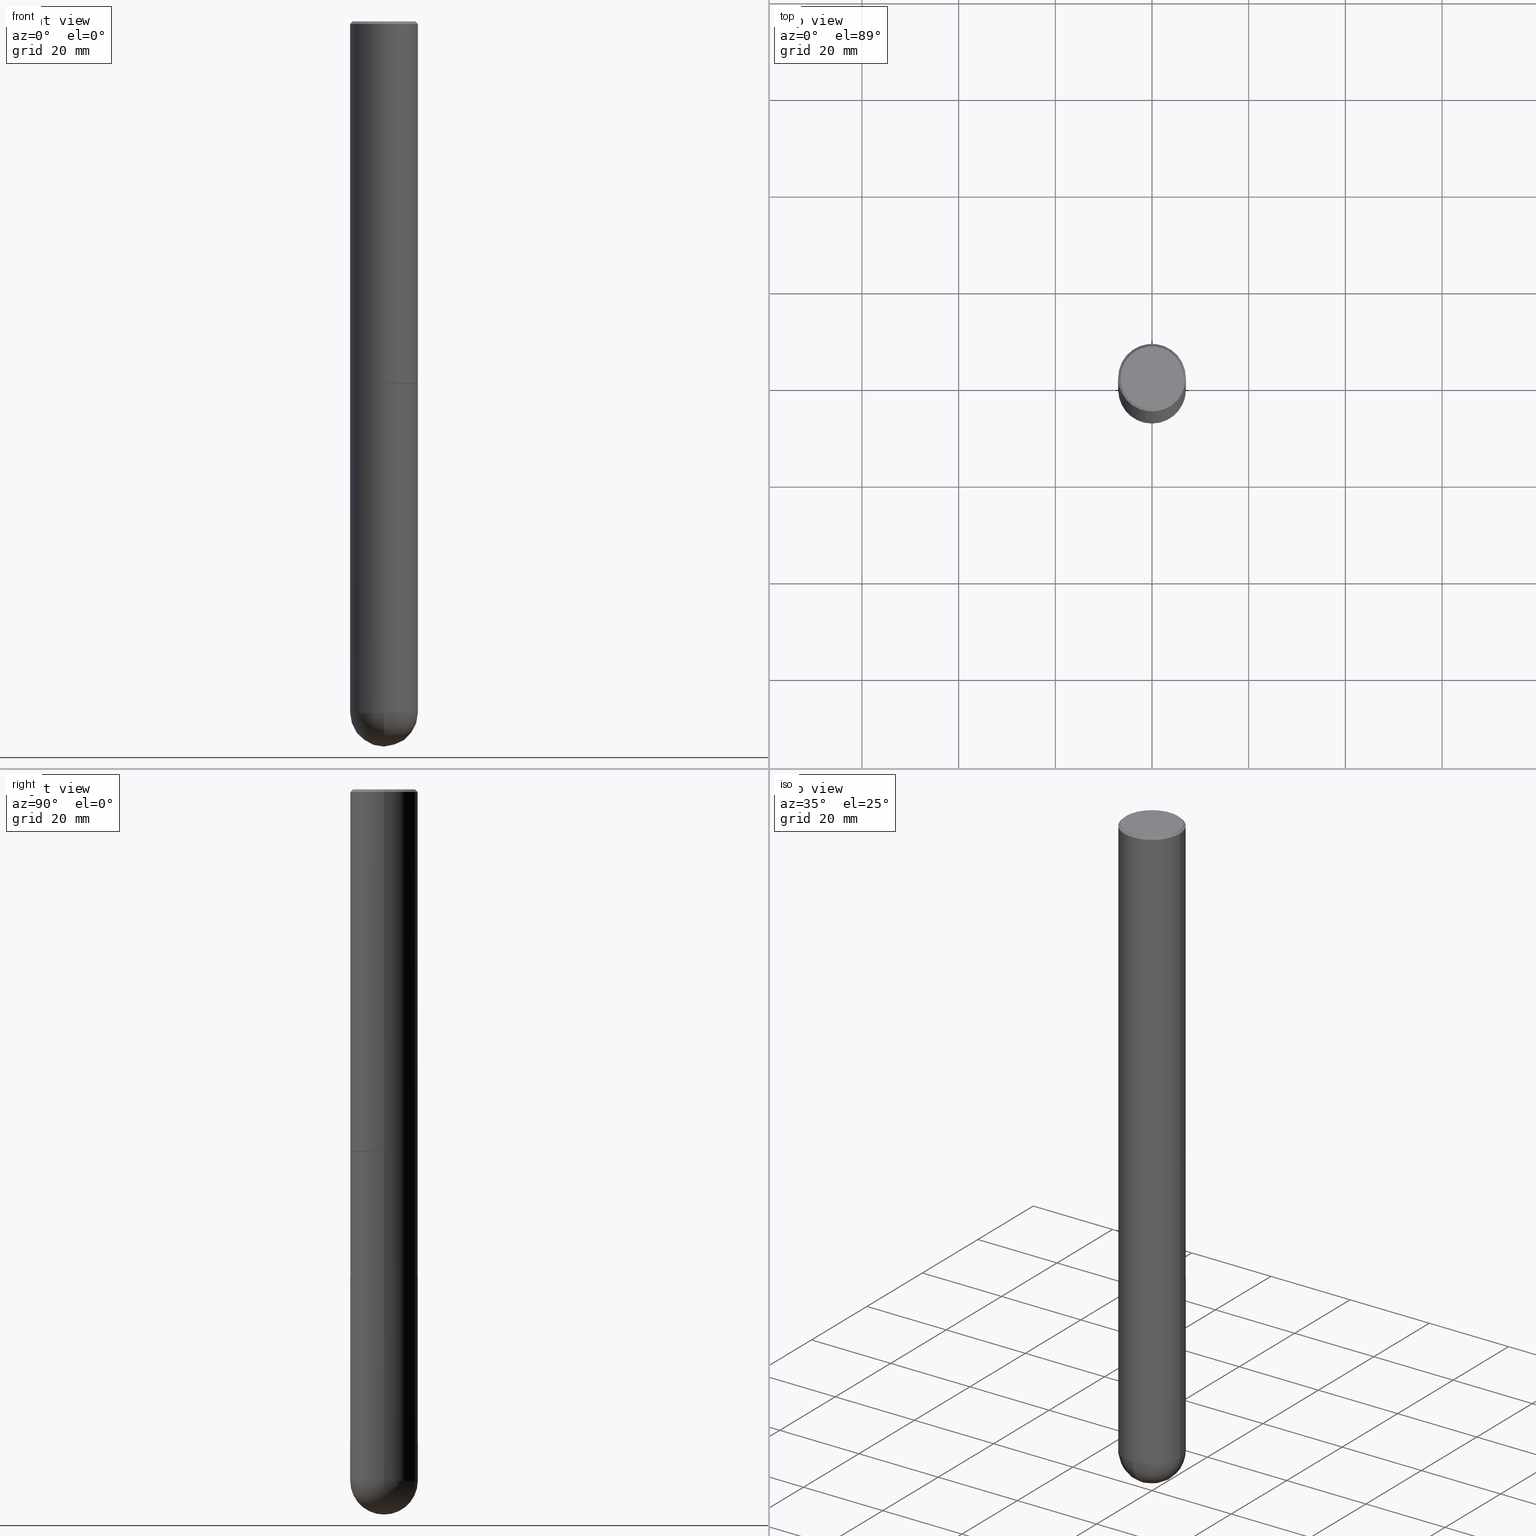
[diagram: canonical four-view strip — front | top / right | iso, engineering-drawing reading convention]
A machine part, canonical four-view strip (front | top / right | iso — engineering-drawing reading convention). The complete STEP part file that produces these views, byte-faithful:
ISO-10303-21;
HEADER;
FILE_DESCRIPTION (( 'STEP AP203' ),
    '1' );
FILE_NAME ('49578.STEP',
    '2024-04-10T12:28:53',
    ( '' ),
    ( '' ),
    'SwSTEP 2.0',
    'SolidWorks 2023',
    '' );
FILE_SCHEMA (( 'CONFIG_CONTROL_DESIGN' ));
ENDSEC;

DATA;
#1 = EDGE_LOOP ( 'NONE', ( #271, #82, #54, #388 ) ) ;
#2 = APPROVAL_STATUS ( 'not_yet_approved' ) ;
#3 = AXIS2_PLACEMENT_3D ( 'NONE', #16, #52, #360 ) ;
#4 = ORIENTED_EDGE ( 'NONE', *, *, #387, .F. ) ;
#5 = ADVANCED_FACE ( 'NONE', ( #240 ), #207, .F. ) ;
#6 = VERTEX_POINT ( 'NONE', #85 ) ;
#7 = DIRECTION ( 'NONE',  ( 0.7071067811865469066, -7.319954787623254468E-15, -0.7071067811865482389 ) ) ;
#8 = FACE_OUTER_BOUND ( 'NONE', #1, .T. ) ;
#9 = AXIS2_PLACEMENT_3D ( 'NONE', #410, #282, #41 ) ;
#10 = EDGE_CURVE ( 'NONE', #42, #20, #212, .T. ) ;
#11 = DIRECTION ( 'NONE',  ( 1.000000000000000000, -6.982962677686267499E-15, 4.876176775795935793E-29 ) ) ;
#12 = CARTESIAN_POINT ( 'NONE',  ( 7.220735744022853640E-29, -1.030929694920215659E-14, -2.952700000000000546 ) ) ;
#13 = ORIENTED_EDGE ( 'NONE', *, *, #201, .T. ) ;
#14 = PRODUCT ( '49578', '49578', '', ( #303 ) ) ;
#15 = CARTESIAN_POINT ( 'NONE',  ( 0.000000000000000000, 0.000000000000000000, 0.000000000000000000 ) ) ;
#16 = CARTESIAN_POINT ( 'NONE',  ( 1.784845260416611119E-15, 0.2556000000000002159, -9.948669299707185608E-16 ) ) ;
#17 = AXIS2_PLACEMENT_3D ( 'NONE', #367, #93, #218 ) ;
#18 = PRODUCT_DEFINITION_FORMATION_WITH_SPECIFIED_SOURCE ( 'ANY', '', #14, .NOT_KNOWN. ) ;
#19 = PERSON_AND_ORGANIZATION_ROLE ( 'creator' ) ;
#20 = VERTEX_POINT ( 'NONE', #269 ) ;
#21 = EDGE_CURVE ( 'NONE', #317, #375, #397, .T. ) ;
#22 = APPROVAL_STATUS ( 'not_yet_approved' ) ;
#23 = ORIENTED_EDGE ( 'NONE', *, *, #196, .F. ) ;
#24 = CC_DESIGN_PERSON_AND_ORGANIZATION_ASSIGNMENT ( #148, #151, ( #18 ) ) ;
#25 = PERSON_AND_ORGANIZATION ( #83, #115 ) ;
#26 = DIRECTION ( 'NONE',  ( 1.000000000000000000, -6.982962677686264344E-15, 0.000000000000000000 ) ) ;
#27 = AXIS2_PLACEMENT_3D ( 'NONE', #132, #252, #160 ) ;
#28 = ADVANCED_FACE ( 'NONE', ( #211 ), #199, .T. ) ;
#29 = CC_DESIGN_SECURITY_CLASSIFICATION ( #179, ( #18 ) ) ;
#30 = APPLICATION_PROTOCOL_DEFINITION ( 'international standard', 'config_control_design', 1994, #292 ) ;
#31 = DIRECTION ( 'NONE',  ( 1.000000000000000000, -6.982962677686267499E-15, 0.000000000000000000 ) ) ;
#32 = CARTESIAN_POINT ( 'NONE',  ( -0.2756000000000000116, -1.302473808962275237E-14, -2.952700000000000102 ) ) ;
#33 = APPROVAL_DATE_TIME ( #371, #186 ) ;
#34 = DIRECTION ( 'NONE',  ( 1.000000000000000000, -6.982962677686262766E-15, 0.000000000000000000 ) ) ;
#35 = AXIS2_PLACEMENT_3D ( 'NONE', #389, #51, #109 ) ;
#36 = CARTESIAN_POINT ( 'NONE',  ( 7.220735744022853640E-29, -1.030929694920215659E-14, -2.952700000000000546 ) ) ;
#37 = EDGE_CURVE ( 'NONE', #349, #257, #380, .T. ) ;
#38 = EDGE_LOOP ( 'NONE', ( #102, #116, #378, #296 ) ) ;
#39 = DIRECTION ( 'NONE',  ( 1.000000000000000000, -6.982962677686264344E-15, 0.000000000000000000 ) ) ;
#40 = ORIENTED_EDGE ( 'NONE', *, *, #166, .T. ) ;
#41 = DIRECTION ( 'NONE',  ( 1.000000000000000000, -6.982962677686265922E-15, 4.876943595080608811E-29 ) ) ;
#42 = VERTEX_POINT ( 'NONE', #60 ) ;
#43 = AXIS2_PLACEMENT_3D ( 'NONE', #152, #405, #156 ) ;
#44 = AXIS2_PLACEMENT_3D ( 'NONE', #79, #138, #112 ) ;
#45 = ORIENTED_EDGE ( 'NONE', *, *, #318, .T. ) ;
#46 = CYLINDRICAL_SURFACE ( 'NONE', #104, 0.2756000000000000671 ) ;
#47 = LINE ( 'NONE', #209, #327 ) ;
#48 = ADVANCED_BREP_SHAPE_REPRESENTATION ( '49578', ( #345, #215, #123 ), #200 ) ;
#49 = FACE_OUTER_BOUND ( 'NONE', #72, .T. ) ;
#50 = CONICAL_SURFACE ( 'NONE', #153, 0.2756000000000000116, 0.7853981633974473908 ) ;
#51 = DIRECTION ( 'NONE',  ( -2.445468806185136597E-29, 3.491481338843145583E-15, 1.000000000000000000 ) ) ;
#52 = DIRECTION ( 'NONE',  ( 2.438088387897960049E-29, -3.491481338843145188E-15, -1.000000000000000000 ) ) ;
#53 = DIRECTION ( 'NONE',  ( 1.000000000000000000, -6.982962677686265922E-15, 4.876176775795935793E-29 ) ) ;
#54 = ORIENTED_EDGE ( 'NONE', *, *, #37, .F. ) ;
#55 = DATE_AND_TIME ( #184, #131 ) ;
#56 = EDGE_LOOP ( 'NONE', ( #319, #376, #239, #348 ) ) ;
#57 = AXIS2_PLACEMENT_3D ( 'NONE', #263, #293, #11 ) ;
#58 = ORIENTED_EDGE ( 'NONE', *, *, #21, .F. ) ;
#59 = PERSON_AND_ORGANIZATION ( #83, #115 ) ;
#60 = CARTESIAN_POINT ( 'NONE',  ( 0.2556000000000002159, -1.857063081596551608E-15, -2.048885995248069963E-16 ) ) ;
#61 = EDGE_CURVE ( 'NONE', #329, #137, #275, .T. ) ;
#62 = DIRECTION ( 'NONE',  ( -2.445468806185136597E-29, 3.491481338843145583E-15, 1.000000000000000000 ) ) ;
#63 = DIRECTION ( 'NONE',  ( 0.7071067811865837660, -2.468850131082636503E-15, 0.7071067811865112684 ) ) ;
#64 = CC_DESIGN_DATE_AND_TIME_ASSIGNMENT ( #320, #377, ( #179 ) ) ;
#65 = CIRCLE ( 'NONE', #195, 0.2756000000000000116 ) ;
#66 = CARTESIAN_POINT ( 'NONE',  ( 7.220735744022852519E-29, -1.030929694920215502E-14, -2.952700000000000102 ) ) ;
#67 = LINE ( 'NONE', #337, #71 ) ;
#68 = CARTESIAN_POINT ( 'NONE',  ( -0.2746000000000000107, -8.352848142456696244E-15, -2.952700000000000546 ) ) ;
#69 = ADVANCED_FACE ( 'NONE', ( #222 ), #193, .T. ) ;
#70 = ORIENTED_EDGE ( 'NONE', *, *, #224, .T. ) ;
#71 = VECTOR ( 'NONE', #63, 39.37007874015748143 ) ;
#72 = EDGE_LOOP ( 'NONE', ( #182, #299, #266, #58, #45 ) ) ;
#73 = ORIENTED_EDGE ( 'NONE', *, *, #141, .F. ) ;
#74 = ORIENTED_EDGE ( 'NONE', *, *, #407, .F. ) ;
#75 = PRODUCT_RELATED_PRODUCT_CATEGORY ( 'detail', '', ( #14 ) ) ;
#76 = VECTOR ( 'NONE', #162, 39.37007874015748143 ) ;
#77 = DIRECTION ( 'NONE',  ( 1.000000000000000000, -6.982962677686267499E-15, 4.876176775795935793E-29 ) ) ;
#78 = CARTESIAN_POINT ( 'NONE',  ( 4.890937612370288923E-31, -6.982962677686312563E-17, -0.02000000000000006287 ) ) ;
#79 = CARTESIAN_POINT ( 'NONE',  ( 7.218290275216666916E-29, -1.030580546786331359E-14, -2.951700000000000212 ) ) ;
#80 = DIRECTION ( 'NONE',  ( 2.445468806185136597E-29, -3.491481338843145583E-15, -1.000000000000000000 ) ) ;
#81 = CIRCLE ( 'NONE', #44, 0.2756000000000004557 ) ;
#82 = ORIENTED_EDGE ( 'NONE', *, *, #387, .T. ) ;
#83 = PERSON ( 'UNSPECIFIED', 'UNSPECIFIED', 'UNSPECIFIED', ('UNSPECIFIED'), ('UNSPECIFIED'), ('UNSPECIFIED') ) ;
#84 = DIRECTION ( 'NONE',  ( -2.438088387897960049E-29, 3.491481338843145188E-15, 1.000000000000000000 ) ) ;
#85 = CARTESIAN_POINT ( 'NONE',  ( 0.2756000000000004557, -1.223030998183365327E-14, -2.951700000000000212 ) ) ;
#86 = DIRECTION ( 'NONE',  ( -2.445468806185136877E-29, 3.491481338843145188E-15, 1.000000000000000000 ) ) ;
#87 = LINE ( 'NONE', #243, #188 ) ;
#88 = ORIENTED_EDGE ( 'NONE', *, *, #264, .T. ) ;
#89 = AXIS2_PLACEMENT_3D ( 'NONE', #192, #312, #34 ) ;
#90 = APPROVAL_PERSON_ORGANIZATION ( #368, #402, #272 ) ;
#91 = ADVANCED_FACE ( 'NONE', ( #285 ), #97, .F. ) ;
#92 = CARTESIAN_POINT ( 'NONE',  ( 7.218290275216666916E-29, -1.030580546786331359E-14, -2.951700000000000212 ) ) ;
#93 = DIRECTION ( 'NONE',  ( 2.445468806185136597E-29, -3.491481338843145583E-15, -1.000000000000000000 ) ) ;
#94 = COORDINATED_UNIVERSAL_TIME_OFFSET ( 5, 0, .BEHIND. ) ;
#95 = CYLINDRICAL_SURFACE ( 'NONE', #308, 0.2756000000000002337 ) ;
#96 = APPROVAL_ROLE ( '' ) ;
#97 = PLANE ( 'NONE',  #27 ) ;
#98 = VERTEX_POINT ( 'NONE', #68 ) ;
#99 = ADVANCED_FACE ( 'NONE', ( #127 ), #260, .T. ) ;
#100 = COORDINATED_UNIVERSAL_TIME_OFFSET ( 5, 0, .BEHIND. ) ;
#101 = SHAPE_DEFINITION_REPRESENTATION ( #343, #48 ) ;
#102 = ORIENTED_EDGE ( 'NONE', *, *, #264, .F. ) ;
#103 = AXIS2_PLACEMENT_3D ( 'NONE', #245, #159, #366 ) ;
#104 = AXIS2_PLACEMENT_3D ( 'NONE', #15, #236, #77 ) ;
#105 = CARTESIAN_POINT ( 'NONE',  ( 1.376774483194169922E-28, -1.965669078955302449E-14, -5.629900000000000126 ) ) ;
#106 = CC_DESIGN_PERSON_AND_ORGANIZATION_ASSIGNMENT ( #25, #19, ( #18 ) ) ;
#107 = VERTEX_POINT ( 'NONE', #187 ) ;
#108 = AXIS2_PLACEMENT_3D ( 'NONE', #36, #344, #369 ) ;
#109 = DIRECTION ( 'NONE',  ( 1.000000000000000000, -6.982962677686267499E-15, 4.876176775795935793E-29 ) ) ;
#110 = EDGE_CURVE ( 'NONE', #313, #137, #339, .T. ) ;
#111 = FACE_OUTER_BOUND ( 'NONE', #158, .T. ) ;
#112 = DIRECTION ( 'NONE',  ( 1.000000000000000000, -6.982962677686269077E-15, 0.000000000000000000 ) ) ;
#113 = CYLINDRICAL_SURFACE ( 'NONE', #57, 0.2756000000000000671 ) ;
#114 = AXIS2_PLACEMENT_3D ( 'NONE', #331, #176, #147 ) ;
#115 = ORGANIZATION ( 'UNSPECIFIED', 'UNSPECIFIED', '' ) ;
#116 = ORIENTED_EDGE ( 'NONE', *, *, #224, .F. ) ;
#117 = EDGE_CURVE ( 'NONE', #6, #362, #169, .T. ) ;
#118 = LINE ( 'NONE', #330, #154 ) ;
#119 = CARTESIAN_POINT ( 'NONE',  ( 0.2756000000000000671, -1.924504513970335743E-15, 1.343874319409360268E-29 ) ) ;
#120 = ORIENTED_EDGE ( 'NONE', *, *, #10, .T. ) ;
#121 =( CONVERSION_BASED_UNIT ( 'INCH', #398 ) LENGTH_UNIT ( ) NAMED_UNIT ( #235 ) );
#122 = CIRCLE ( 'NONE', #43, 0.2756000000000000116 ) ;
#123 = AXIS2_PLACEMENT_3D ( 'NONE', #181, #246, #311 ) ;
#124 = PERSON_AND_ORGANIZATION ( #83, #115 ) ;
#125 = LINE ( 'NONE', #248, #363 ) ;
#126 = PERSON_AND_ORGANIZATION_ROLE ( 'design_owner' ) ;
#127 = FACE_OUTER_BOUND ( 'NONE', #56, .T. ) ;
#128 = UNCERTAINTY_MEASURE_WITH_UNIT (LENGTH_MEASURE( 1.000000000000000082E-05 ), #121, 'distance_accuracy_value', 'NONE');
#129 = DIRECTION ( 'NONE',  ( -1.000000000000000000, 7.105427357601001070E-15, -4.926315508542082329E-29 ) ) ;
#130 = CIRCLE ( 'NONE', #351, 0.2756000000000000671 ) ;
#131 = LOCAL_TIME ( 8, 28, 53.00000000000000000, #365 ) ;
#132 = CARTESIAN_POINT ( 'NONE',  ( 1.924504513970407529E-15, 0.2755999999999896866, -2.952700000000000990 ) ) ;
#133 = ORIENTED_EDGE ( 'NONE', *, *, #61, .T. ) ;
#134 = AXIS2_PLACEMENT_3D ( 'NONE', #223, #411, #31 ) ;
#135 = APPROVAL ( #157, 'UNSPECIFIED' ) ;
#136 = ORIENTED_EDGE ( 'NONE', *, *, #201, .F. ) ;
#137 = VERTEX_POINT ( 'NONE', #310 ) ;
#138 = DIRECTION ( 'NONE',  ( -2.445468806185136597E-29, 3.491481338843145583E-15, 1.000000000000000000 ) ) ;
#139 = LINE ( 'NONE', #202, #309 ) ;
#140 = DIRECTION ( 'NONE',  ( 6.982962677686267499E-15, 1.000000000000000000, 0.000000000000000000 ) ) ;
#141 = EDGE_CURVE ( 'NONE', #107, #6, #67, .T. ) ;
#142 = CARTESIAN_POINT ( 'NONE',  ( 1.412238044847732931E-28, -2.107624978178599697E-14, -5.905499999999999972 ) ) ;
#143 = EDGE_LOOP ( 'NONE', ( #214, #304, #13, #174, #74 ) ) ;
#144 = CARTESIAN_POINT ( 'NONE',  ( 0.2756000000000000116, -1.223380146317248997E-14, -2.952700000000000102 ) ) ;
#145 = PRODUCT_DEFINITION ( 'UNKNOWN', '', #18, #167 ) ;
#146 = LOCAL_TIME ( 8, 28, 53.00000000000000000, #94 ) ;
#147 = DIRECTION ( 'NONE',  ( 1.000000000000000000, -6.982962677686265922E-15, 4.876943595080608811E-29 ) ) ;
#148 = PERSON_AND_ORGANIZATION ( #83, #115 ) ;
#149 = ORIENTED_EDGE ( 'NONE', *, *, #407, .T. ) ;
#150 = ORIENTED_EDGE ( 'NONE', *, *, #241, .F. ) ;
#151 = PERSON_AND_ORGANIZATION_ROLE ( 'design_supplier' ) ;
#152 = CARTESIAN_POINT ( 'NONE',  ( 7.220735744022852519E-29, -1.030929694920215502E-14, -2.952700000000000102 ) ) ;
#153 = AXIS2_PLACEMENT_3D ( 'NONE', #324, #80, #203 ) ;
#154 = VECTOR ( 'NONE', #173, 39.37007874015748143 ) ;
#155 = APPLICATION_PROTOCOL_DEFINITION ( 'international standard', 'config_control_design', 1994, #379 ) ;
#156 = DIRECTION ( 'NONE',  ( 1.000000000000000000, -6.982962677686265922E-15, 0.000000000000000000 ) ) ;
#157 = APPROVAL_STATUS ( 'not_yet_approved' ) ;
#158 = EDGE_LOOP ( 'NONE', ( #323, #401, #210, #136 ) ) ;
#159 = DIRECTION ( 'NONE',  ( -2.445468806185136597E-29, 3.491481338843145583E-15, 1.000000000000000000 ) ) ;
#160 = DIRECTION ( 'NONE',  ( -1.000000000000000000, 6.982962677686265922E-15, -4.876176775795935793E-29 ) ) ;
#161 = EDGE_CURVE ( 'NONE', #333, #313, #220, .T. ) ;
#162 = DIRECTION ( 'NONE',  ( -0.7071067811865469066, 2.468850131082249961E-15, -0.7071067811865482389 ) ) ;
#163 = ORIENTED_EDGE ( 'NONE', *, *, #172, .T. ) ;
#164 = DIRECTION ( 'NONE',  ( -2.445468806185136597E-29, 3.491481338843145583E-15, 1.000000000000000000 ) ) ;
#165 = SPHERICAL_SURFACE ( 'NONE', #221, 0.2756000000000000671 ) ;
#166 = EDGE_CURVE ( 'NONE', #375, #385, #122, .T. ) ;
#167 = DESIGN_CONTEXT ( 'detailed design', #379, 'design' ) ;
#168 = DIRECTION ( 'NONE',  ( -2.445468806185136597E-29, 3.491481338843145583E-15, 1.000000000000000000 ) ) ;
#169 = CIRCLE ( 'NONE', #395, 0.2756000000000004557 ) ;
#170 = LOCAL_TIME ( 8, 28, 53.00000000000000000, #412 ) ;
#171 = CYLINDRICAL_SURFACE ( 'NONE', #35, 0.2756000000000002337 ) ;
#172 = EDGE_CURVE ( 'NONE', #6, #349, #125, .T. ) ;
#173 = DIRECTION ( 'NONE',  ( -0.7071067811865837660, 7.493145998870485111E-15, 0.7071067811865112684 ) ) ;
#174 = ORIENTED_EDGE ( 'NONE', *, *, #21, .T. ) ;
#175 = FACE_OUTER_BOUND ( 'NONE', #273, .T. ) ;
#176 = DIRECTION ( 'NONE',  ( -2.445468806185136597E-29, 3.491481338843145583E-15, 1.000000000000000000 ) ) ;
#177 = PERSON_AND_ORGANIZATION ( #83, #115 ) ;
#178 = AXIS2_PLACEMENT_3D ( 'NONE', #373, #129, #346 ) ;
#179 = SECURITY_CLASSIFICATION ( '', '', #270 ) ;
#180 = ORIENTED_EDGE ( 'NONE', *, *, #291, .F. ) ;
#181 = CARTESIAN_POINT ( 'NONE',  ( 0.000000000000000000, 0.000000000000000000, 0.000000000000000000 ) ) ;
#182 = ORIENTED_EDGE ( 'NONE', *, *, #161, .T. ) ;
#183 = ADVANCED_FACE ( 'NONE', ( #250 ), #321, .T. ) ;
#184 = CALENDAR_DATE ( 2024, 10, 4 ) ;
#185 = DIRECTION ( 'NONE',  ( -1.000000000000000000, 6.982962677686265922E-15, -4.883557194083112901E-29 ) ) ;
#186 = APPROVAL ( #2, 'UNSPECIFIED' ) ;
#187 = CARTESIAN_POINT ( 'NONE',  ( 0.2746000000000000107, -1.222681850049480396E-14, -2.952700000000000546 ) ) ;
#188 = VECTOR ( 'NONE', #219, 39.37007874015748143 ) ;
#189 = ADVANCED_FACE ( 'NONE', ( #338 ), #95, .T. ) ;
#190 = DIRECTION ( 'NONE',  ( 1.000000000000000000, -6.982962677686265922E-15, 0.000000000000000000 ) ) ;
#191 = CARTESIAN_POINT ( 'NONE',  ( 0.000000000000000000, 0.000000000000000000, 0.000000000000000000 ) ) ;
#192 = CARTESIAN_POINT ( 'NONE',  ( 7.220735744022853640E-29, -1.030929694920215659E-14, -2.952700000000000546 ) ) ;
#193 = SPHERICAL_SURFACE ( 'NONE', #267, 0.2756000000000000671 ) ;
#194 = CIRCLE ( 'NONE', #9, 0.2556000000000002159 ) ;
#195 = AXIS2_PLACEMENT_3D ( 'NONE', #78, #268, #290 ) ;
#196 = EDGE_CURVE ( 'NONE', #20, #257, #384, .T. ) ;
#197 = ORIENTED_EDGE ( 'NONE', *, *, #241, .T. ) ;
#198 = EDGE_LOOP ( 'NONE', ( #197, #228, #335, #73 ) ) ;
#199 = CONICAL_SURFACE ( 'NONE', #108, 0.2746000000000000107, 0.7853981633974995713 ) ;
#200 =( GEOMETRIC_REPRESENTATION_CONTEXT ( 3 ) GLOBAL_UNCERTAINTY_ASSIGNED_CONTEXT ( ( #128 ) ) GLOBAL_UNIT_ASSIGNED_CONTEXT ( ( #121, #334, #406 ) ) REPRESENTATION_CONTEXT ( 'NONE', 'WORKASPACE' ) );
#201 = EDGE_CURVE ( 'NONE', #137, #317, #130, .T. ) ;
#202 = CARTESIAN_POINT ( 'NONE',  ( -0.2756000000000000671, 1.958255779754836589E-15, -1.355658510874252287E-29 ) ) ;
#203 = DIRECTION ( 'NONE',  ( -1.000000000000000000, 6.982962677686267499E-15, 0.000000000000000000 ) ) ;
#204 = DIRECTION ( 'NONE',  ( 1.000000000000000000, -6.982962677686262766E-15, 0.000000000000000000 ) ) ;
#205 = AXIS2_PLACEMENT_3D ( 'NONE', #356, #354, #140 ) ;
#206 = CARTESIAN_POINT ( 'NONE',  ( 7.220735744022853640E-29, -1.030929694920215659E-14, -2.952700000000000546 ) ) ;
#207 = PLANE ( 'NONE',  #3 ) ;
#208 = CC_DESIGN_DATE_AND_TIME_ASSIGNMENT ( #55, #340, ( #145 ) ) ;
#209 = CARTESIAN_POINT ( 'NONE',  ( 0.2756000000000000116, -1.960582874962697406E-15, -0.02000000000000006287 ) ) ;
#210 = ORIENTED_EDGE ( 'NONE', *, *, #318, .F. ) ;
#211 = FACE_OUTER_BOUND ( 'NONE', #198, .T. ) ;
#212 = CIRCLE ( 'NONE', #114, 0.2556000000000002159 ) ;
#213 = AXIS2_PLACEMENT_3D ( 'NONE', #12, #325, #233 ) ;
#214 = ORIENTED_EDGE ( 'NONE', *, *, #247, .F. ) ;
#215 = MANIFOLD_SOLID_BREP ( 'Body-Move/Copy2[2]', #244 ) ;
#216 = DIRECTION ( 'NONE',  ( -2.445468806185136597E-29, 3.491481338843145583E-15, 1.000000000000000000 ) ) ;
#217 =( LENGTH_UNIT ( ) NAMED_UNIT ( * ) SI_UNIT ( $, .METRE. ) );
#218 = DIRECTION ( 'NONE',  ( -1.000000000000000000, 6.982962677686267499E-15, 0.000000000000000000 ) ) ;
#219 = DIRECTION ( 'NONE',  ( -2.445468806185136877E-29, 3.491481338843145188E-15, 1.000000000000000000 ) ) ;
#220 = CIRCLE ( 'NONE', #314, 0.2756000000000000671 ) ;
#221 = AXIS2_PLACEMENT_3D ( 'NONE', #355, #289, #391 ) ;
#222 = FACE_OUTER_BOUND ( 'NONE', #288, .T. ) ;
#223 = CARTESIAN_POINT ( 'NONE',  ( 4.890937612370288923E-31, -6.982962677686312563E-17, -0.02000000000000006287 ) ) ;
#224 = EDGE_CURVE ( 'NONE', #20, #42, #194, .T. ) ;
#225 = AXIS2_PLACEMENT_3D ( 'NONE', #66, #62, #190 ) ;
#226 = ADVANCED_FACE ( 'NONE', ( #237 ), #50, .T. ) ;
#227 = DIRECTION ( 'NONE',  ( -2.445468806185136597E-29, 3.491481338843145583E-15, 1.000000000000000000 ) ) ;
#228 = ORIENTED_EDGE ( 'NONE', *, *, #294, .T. ) ;
#229 = ADVANCED_FACE ( 'NONE', ( #295 ), #46, .T. ) ;
#230 = ORIENTED_EDGE ( 'NONE', *, *, #161, .F. ) ;
#231 = ORIENTED_EDGE ( 'NONE', *, *, #37, .T. ) ;
#232 = AXIS2_PLACEMENT_3D ( 'NONE', #206, #168, #204 ) ;
#233 = DIRECTION ( 'NONE',  ( 1.000000000000000000, -6.982962677686262766E-15, 0.000000000000000000 ) ) ;
#234 = CARTESIAN_POINT ( 'NONE',  ( 1.376774483194169922E-28, -1.965669078955302449E-14, -5.629900000000000126 ) ) ;
#235 = DIMENSIONAL_EXPONENTS ( 1.000000000000000000, 0.000000000000000000, 0.000000000000000000, 0.000000000000000000, 0.000000000000000000, 0.000000000000000000, 0.000000000000000000 ) ;
#236 = DIRECTION ( 'NONE',  ( -2.445468806185136597E-29, 3.491481338843145583E-15, 1.000000000000000000 ) ) ;
#237 = FACE_OUTER_BOUND ( 'NONE', #38, .T. ) ;
#238 = PLANE ( 'NONE',  #364 ) ;
#239 = ORIENTED_EDGE ( 'NONE', *, *, #141, .T. ) ;
#240 = FACE_OUTER_BOUND ( 'NONE', #357, .T. ) ;
#241 = EDGE_CURVE ( 'NONE', #107, #98, #382, .T. ) ;
#242 = ORIENTED_EDGE ( 'NONE', *, *, #110, .F. ) ;
#243 = CARTESIAN_POINT ( 'NONE',  ( -0.2756000000000002337, 1.958255779754837773E-15, -1.355658510874253128E-29 ) ) ;
#244 = CLOSED_SHELL ( 'NONE', ( #28, #342, #183, #226, #189, #99, #358, #5 ) ) ;
#245 = CARTESIAN_POINT ( 'NONE',  ( 1.376774483194169922E-28, -1.965669078955302449E-14, -5.629900000000000126 ) ) ;
#246 = DIRECTION ( 'NONE',  ( 0.000000000000000000, 0.000000000000000000, 1.000000000000000000 ) ) ;
#247 = EDGE_CURVE ( 'NONE', #313, #385, #139, .T. ) ;
#248 = CARTESIAN_POINT ( 'NONE',  ( 0.2756000000000002337, -1.924504513970336926E-15, 1.343874319409361109E-29 ) ) ;
#249 = CALENDAR_DATE ( 2024, 10, 4 ) ;
#250 = FACE_OUTER_BOUND ( 'NONE', #302, .T. ) ;
#251 = DIRECTION ( 'NONE',  ( 1.000000000000000000, -6.982962677686267499E-15, 4.876176775795935793E-29 ) ) ;
#252 = DIRECTION ( 'NONE',  ( 2.438088387897960049E-29, -3.491481338843145188E-15, -1.000000000000000000 ) ) ;
#253 = ADVANCED_FACE ( 'NONE', ( #111 ), #165, .T. ) ;
#254 = EDGE_LOOP ( 'NONE', ( #40, #149 ) ) ;
#255 = CC_DESIGN_APPROVAL ( #135, ( #18 ) ) ;
#256 = CIRCLE ( 'NONE', #225, 0.2756000000000000116 ) ;
#257 = VERTEX_POINT ( 'NONE', #326 ) ;
#258 = ORIENTED_EDGE ( 'NONE', *, *, #10, .F. ) ;
#259 = CARTESIAN_POINT ( 'NONE',  ( 1.924504513970471427E-15, 0.2755999999999801942, -5.629900000000001015 ) ) ;
#260 = CONICAL_SURFACE ( 'NONE', #89, 0.2746000000000000107, 0.7853981633974995713 ) ;
#261 = CIRCLE ( 'NONE', #205, 0.2756000000000000671 ) ;
#262 = DIRECTION ( 'NONE',  ( -2.445468806185136877E-29, 3.491481338843145188E-15, 1.000000000000000000 ) ) ;
#263 = CARTESIAN_POINT ( 'NONE',  ( 0.000000000000000000, 0.000000000000000000, 0.000000000000000000 ) ) ;
#264 = EDGE_CURVE ( 'NONE', #42, #349, #47, .T. ) ;
#265 = CARTESIAN_POINT ( 'NONE',  ( 0.2756000000000000116, -1.960582874962697406E-15, -0.02000000000000006287 ) ) ;
#266 = ORIENTED_EDGE ( 'NONE', *, *, #166, .F. ) ;
#267 = AXIS2_PLACEMENT_3D ( 'NONE', #408, #185, #315 ) ;
#268 = DIRECTION ( 'NONE',  ( -2.445468806185136597E-29, 3.491481338843145583E-15, 1.000000000000000000 ) ) ;
#269 = CARTESIAN_POINT ( 'NONE',  ( -0.2556000000000002159, 1.819760073805041190E-15, -2.048885995248323632E-16 ) ) ;
#270 = SECURITY_CLASSIFICATION_LEVEL ( 'unclassified' ) ;
#271 = ORIENTED_EDGE ( 'NONE', *, *, #117, .T. ) ;
#272 = APPROVAL_ROLE ( '' ) ;
#273 = EDGE_LOOP ( 'NONE', ( #150, #386 ) ) ;
#274 = PERSON_AND_ORGANIZATION_ROLE ( 'creator' ) ;
#275 = CIRCLE ( 'NONE', #178, 0.2756000000000000671 ) ;
#276 = CARTESIAN_POINT ( 'NONE',  ( 1.376774483194169922E-28, -1.965669078955302449E-14, -5.629900000000000126 ) ) ;
#277 = DATE_AND_TIME ( #279, #146 ) ;
#278 = DIRECTION ( 'NONE',  ( -2.445468806185136877E-29, 3.491481338843145188E-15, 1.000000000000000000 ) ) ;
#279 = CALENDAR_DATE ( 2024, 10, 4 ) ;
#280 = CALENDAR_DATE ( 2024, 10, 4 ) ;
#281 = VECTOR ( 'NONE', #86, 39.37007874015748143 ) ;
#282 = DIRECTION ( 'NONE',  ( -2.445468806185136597E-29, 3.491481338843145583E-15, 1.000000000000000000 ) ) ;
#283 = LOCAL_TIME ( 8, 28, 53.00000000000000000, #100 ) ;
#284 = EDGE_CURVE ( 'NONE', #362, #6, #81, .T. ) ;
#285 = FACE_OUTER_BOUND ( 'NONE', #254, .T. ) ;
#286 = EDGE_CURVE ( 'NONE', #257, #349, #65, .T. ) ;
#287 = PERSON_AND_ORGANIZATION ( #83, #115 ) ;
#288 = EDGE_LOOP ( 'NONE', ( #180, #133, #242, #230 ) ) ;
#289 = DIRECTION ( 'NONE',  ( -1.000000000000000000, 6.982962677686265922E-15, -4.883557194083112901E-29 ) ) ;
#290 = DIRECTION ( 'NONE',  ( 1.000000000000000000, -6.982962677686267499E-15, 0.000000000000000000 ) ) ;
#291 = EDGE_CURVE ( 'NONE', #329, #333, #261, .T. ) ;
#292 = APPLICATION_CONTEXT ( 'configuration controlled 3d designs of mechanical parts and assemblies' ) ;
#293 = DIRECTION ( 'NONE',  ( -2.445468806185136597E-29, 3.491481338843145583E-15, 1.000000000000000000 ) ) ;
#294 = EDGE_CURVE ( 'NONE', #98, #362, #118, .T. ) ;
#295 = FACE_OUTER_BOUND ( 'NONE', #143, .T. ) ;
#296 = ORIENTED_EDGE ( 'NONE', *, *, #286, .T. ) ;
#297 = EDGE_CURVE ( 'NONE', #98, #107, #352, .T. ) ;
#298 = CARTESIAN_POINT ( 'NONE',  ( -0.2756000000000004002, -3.229561767565246331E-15, -2.951700000000000212 ) ) ;
#299 = ORIENTED_EDGE ( 'NONE', *, *, #247, .T. ) ;
#300 = CC_DESIGN_APPROVAL ( #402, ( #145 ) ) ;
#301 = APPROVAL_DATE_TIME ( #336, #402 ) ;
#302 = EDGE_LOOP ( 'NONE', ( #258, #88, #231, #23 ) ) ;
#303 = MECHANICAL_CONTEXT ( 'NONE', #292, 'mechanical' ) ;
#304 = ORIENTED_EDGE ( 'NONE', *, *, #110, .T. ) ;
#305 = APPROVAL_ROLE ( '' ) ;
#306 = DIRECTION ( 'NONE',  ( -2.445468806185136597E-29, 3.491481338843145583E-15, 1.000000000000000000 ) ) ;
#307 = CC_DESIGN_PERSON_AND_ORGANIZATION_ASSIGNMENT ( #124, #404, ( #179 ) ) ;
#308 = AXIS2_PLACEMENT_3D ( 'NONE', #191, #164, #251 ) ;
#309 = VECTOR ( 'NONE', #262, 39.37007874015748143 ) ;
#310 = CARTESIAN_POINT ( 'NONE',  ( -1.958255779754700116E-15, -0.2756000000000199956, -5.629899999999999238 ) ) ;
#311 = DIRECTION ( 'NONE',  ( 1.000000000000000000, 0.000000000000000000, 0.000000000000000000 ) ) ;
#312 = DIRECTION ( 'NONE',  ( -2.445468806185136597E-29, 3.491481338843145583E-15, 1.000000000000000000 ) ) ;
#313 = VERTEX_POINT ( 'NONE', #396 ) ;
#314 = AXIS2_PLACEMENT_3D ( 'NONE', #276, #306, #26 ) ;
#315 = DIRECTION ( 'NONE',  ( 6.982962677686265922E-15, 1.000000000000000000, -3.964946289788479319E-15 ) ) ;
#316 = APPROVAL_PERSON_ORGANIZATION ( #177, #135, #305 ) ;
#317 = VERTEX_POINT ( 'NONE', #328 ) ;
#318 = EDGE_CURVE ( 'NONE', #317, #333, #372, .T. ) ;
#319 = ORIENTED_EDGE ( 'NONE', *, *, #294, .F. ) ;
#320 = DATE_AND_TIME ( #347, #170 ) ;
#321 = CONICAL_SURFACE ( 'NONE', #17, 0.2756000000000000116, 0.7853981633974473908 ) ;
#322 = LOCAL_TIME ( 8, 28, 53.00000000000000000, #400 ) ;
#323 = ORIENTED_EDGE ( 'NONE', *, *, #61, .F. ) ;
#324 = CARTESIAN_POINT ( 'NONE',  ( 4.890937612370288923E-31, -6.982962677686312563E-17, -0.02000000000000006287 ) ) ;
#325 = DIRECTION ( 'NONE',  ( -2.445468806185136597E-29, 3.491481338843145583E-15, 1.000000000000000000 ) ) ;
#326 = CARTESIAN_POINT ( 'NONE',  ( -0.2756000000000000116, 1.854674887193472050E-15, -0.02000000000000006287 ) ) ;
#327 = VECTOR ( 'NONE', #7, 39.37007874015748143 ) ;
#328 = CARTESIAN_POINT ( 'NONE',  ( 0.2756000000000000671, -1.690749838334792865E-14, -5.629900000000000126 ) ) ;
#329 = VERTEX_POINT ( 'NONE', #142 ) ;
#330 = CARTESIAN_POINT ( 'NONE',  ( -0.2746000000000000107, -8.358146596804921801E-15, -2.952700000000000546 ) ) ;
#331 = CARTESIAN_POINT ( 'NONE',  ( 5.010486788809054823E-45, -7.153647217826146999E-31, -2.048885995248197414E-16 ) ) ;
#332 = PERSON_AND_ORGANIZATION ( #83, #115 ) ;
#333 = VERTEX_POINT ( 'NONE', #259 ) ;
#334 =( NAMED_UNIT ( * ) PLANE_ANGLE_UNIT ( ) SI_UNIT ( $, .RADIAN. ) );
#335 = ORIENTED_EDGE ( 'NONE', *, *, #117, .F. ) ;
#336 = DATE_AND_TIME ( #249, #322 ) ;
#337 = CARTESIAN_POINT ( 'NONE',  ( 0.2746000000000000107, -1.222681850049480396E-14, -2.952700000000000546 ) ) ;
#338 = FACE_OUTER_BOUND ( 'NONE', #394, .T. ) ;
#339 = CIRCLE ( 'NONE', #103, 0.2756000000000000671 ) ;
#340 = DATE_TIME_ROLE ( 'creation_date' ) ;
#341 = DIRECTION ( 'NONE',  ( 1.000000000000000000, -6.982962677686269077E-15, 0.000000000000000000 ) ) ;
#342 = ADVANCED_FACE ( 'NONE', ( #8 ), #171, .T. ) ;
#343 = PRODUCT_DEFINITION_SHAPE ( 'NONE', 'NONE',  #145 ) ;
#344 = DIRECTION ( 'NONE',  ( -2.445468806185136597E-29, 3.491481338843145583E-15, 1.000000000000000000 ) ) ;
#345 = MANIFOLD_SOLID_BREP ( 'Body-Move/Copy2[1]', #370 ) ;
#346 = DIRECTION ( 'NONE',  ( -7.105427357601001859E-15, -1.000000000000000000, 0.000000000000000000 ) ) ;
#347 = CALENDAR_DATE ( 2024, 10, 4 ) ;
#348 = ORIENTED_EDGE ( 'NONE', *, *, #284, .F. ) ;
#349 = VERTEX_POINT ( 'NONE', #265 ) ;
#350 = DIRECTION ( 'NONE',  ( -2.445468806185136597E-29, 3.491481338843145583E-15, 1.000000000000000000 ) ) ;
#351 = AXIS2_PLACEMENT_3D ( 'NONE', #105, #227, #39 ) ;
#352 = CIRCLE ( 'NONE', #232, 0.2746000000000000107 ) ;
#353 = ADVANCED_FACE ( 'NONE', ( #49 ), #113, .T. ) ;
#354 = DIRECTION ( 'NONE',  ( 1.000000000000000000, -6.982962677686265922E-15, 4.883557194083112340E-29 ) ) ;
#355 = CARTESIAN_POINT ( 'NONE',  ( 1.343662505402781410E-28, -2.013087315769307636E-14, -5.629900000000000126 ) ) ;
#356 = CARTESIAN_POINT ( 'NONE',  ( 1.343662505402781410E-28, -2.013087315769307636E-14, -5.629900000000000126 ) ) ;
#357 = EDGE_LOOP ( 'NONE', ( #70, #120 ) ) ;
#358 = ADVANCED_FACE ( 'NONE', ( #175 ), #238, .F. ) ;
#359 = CARTESIAN_POINT ( 'NONE',  ( 7.220735744022853640E-29, -1.030929694920215659E-14, -2.952700000000000546 ) ) ;
#360 = DIRECTION ( 'NONE',  ( -1.000000000000000000, 6.982962677686265922E-15, -4.876176775795935793E-29 ) ) ;
#361 = ORIENTED_EDGE ( 'NONE', *, *, #286, .F. ) ;
#362 = VERTEX_POINT ( 'NONE', #298 ) ;
#363 = VECTOR ( 'NONE', #278, 39.37007874015748143 ) ;
#364 = AXIS2_PLACEMENT_3D ( 'NONE', #359, #84, #53 ) ;
#365 = COORDINATED_UNIVERSAL_TIME_OFFSET ( 5, 0, .BEHIND. ) ;
#366 = DIRECTION ( 'NONE',  ( 1.000000000000000000, -6.982962677686264344E-15, 0.000000000000000000 ) ) ;
#367 = CARTESIAN_POINT ( 'NONE',  ( 4.890937612370288923E-31, -6.982962677686312563E-17, -0.02000000000000006287 ) ) ;
#368 = PERSON_AND_ORGANIZATION ( #83, #115 ) ;
#369 = DIRECTION ( 'NONE',  ( 1.000000000000000000, -6.982962677686262766E-15, 0.000000000000000000 ) ) ;
#370 = CLOSED_SHELL ( 'NONE', ( #353, #69, #253, #91, #229 ) ) ;
#371 = DATE_AND_TIME ( #280, #283 ) ;
#372 = CIRCLE ( 'NONE', #390, 0.2756000000000000671 ) ;
#373 = CARTESIAN_POINT ( 'NONE',  ( 1.343662505402781410E-28, -2.013087315769307636E-14, -5.629900000000000126 ) ) ;
#374 = CARTESIAN_POINT ( 'NONE',  ( -0.2756000000000000116, 1.854674887193472050E-15, -0.02000000000000006287 ) ) ;
#375 = VERTEX_POINT ( 'NONE', #144 ) ;
#376 = ORIENTED_EDGE ( 'NONE', *, *, #297, .T. ) ;
#377 = DATE_TIME_ROLE ( 'classification_date' ) ;
#378 = ORIENTED_EDGE ( 'NONE', *, *, #196, .T. ) ;
#379 = APPLICATION_CONTEXT ( 'configuration controlled 3d designs of mechanical parts and assemblies' ) ;
#380 = CIRCLE ( 'NONE', #134, 0.2756000000000000116 ) ;
#381 = CC_DESIGN_PERSON_AND_ORGANIZATION_ASSIGNMENT ( #59, #274, ( #145 ) ) ;
#382 = CIRCLE ( 'NONE', #213, 0.2746000000000000107 ) ;
#383 = CC_DESIGN_APPROVAL ( #186, ( #179 ) ) ;
#384 = LINE ( 'NONE', #374, #76 ) ;
#385 = VERTEX_POINT ( 'NONE', #32 ) ;
#386 = ORIENTED_EDGE ( 'NONE', *, *, #297, .F. ) ;
#387 = EDGE_CURVE ( 'NONE', #362, #257, #87, .T. ) ;
#388 = ORIENTED_EDGE ( 'NONE', *, *, #172, .F. ) ;
#389 = CARTESIAN_POINT ( 'NONE',  ( 0.000000000000000000, 0.000000000000000000, 0.000000000000000000 ) ) ;
#390 = AXIS2_PLACEMENT_3D ( 'NONE', #234, #350, #392 ) ;
#391 = DIRECTION ( 'NONE',  ( 6.982962677686265922E-15, 1.000000000000000000, -3.964946289788479319E-15 ) ) ;
#392 = DIRECTION ( 'NONE',  ( 1.000000000000000000, -6.982962677686264344E-15, 0.000000000000000000 ) ) ;
#393 = CC_DESIGN_PERSON_AND_ORGANIZATION_ASSIGNMENT ( #332, #126, ( #14 ) ) ;
#394 = EDGE_LOOP ( 'NONE', ( #4, #399, #163, #361 ) ) ;
#395 = AXIS2_PLACEMENT_3D ( 'NONE', #92, #216, #341 ) ;
#396 = CARTESIAN_POINT ( 'NONE',  ( -0.2756000000000000671, -1.302473808962275553E-14, -5.629900000000000126 ) ) ;
#397 = LINE ( 'NONE', #119, #281 ) ;
#398 = LENGTH_MEASURE_WITH_UNIT ( LENGTH_MEASURE( 0.02539999999999999897 ), #217 );
#399 = ORIENTED_EDGE ( 'NONE', *, *, #284, .T. ) ;
#400 = COORDINATED_UNIVERSAL_TIME_OFFSET ( 5, 0, .BEHIND. ) ;
#401 = ORIENTED_EDGE ( 'NONE', *, *, #291, .T. ) ;
#402 = APPROVAL ( #22, 'UNSPECIFIED' ) ;
#403 = APPROVAL_PERSON_ORGANIZATION ( #287, #186, #96 ) ;
#404 = PERSON_AND_ORGANIZATION_ROLE ( 'classification_officer' ) ;
#405 = DIRECTION ( 'NONE',  ( -2.445468806185136597E-29, 3.491481338843145583E-15, 1.000000000000000000 ) ) ;
#406 =( NAMED_UNIT ( * ) SI_UNIT ( $, .STERADIAN. ) SOLID_ANGLE_UNIT ( ) );
#407 = EDGE_CURVE ( 'NONE', #385, #375, #256, .T. ) ;
#408 = CARTESIAN_POINT ( 'NONE',  ( 1.343662505402781410E-28, -2.013087315769307636E-14, -5.629900000000000126 ) ) ;
#409 = APPROVAL_DATE_TIME ( #277, #135 ) ;
#410 = CARTESIAN_POINT ( 'NONE',  ( 5.010486788809054823E-45, -7.153647217826146999E-31, -2.048885995248197414E-16 ) ) ;
#411 = DIRECTION ( 'NONE',  ( -2.445468806185136597E-29, 3.491481338843145583E-15, 1.000000000000000000 ) ) ;
#412 = COORDINATED_UNIVERSAL_TIME_OFFSET ( 5, 0, .BEHIND. ) ;
ENDSEC;
END-ISO-10303-21;
